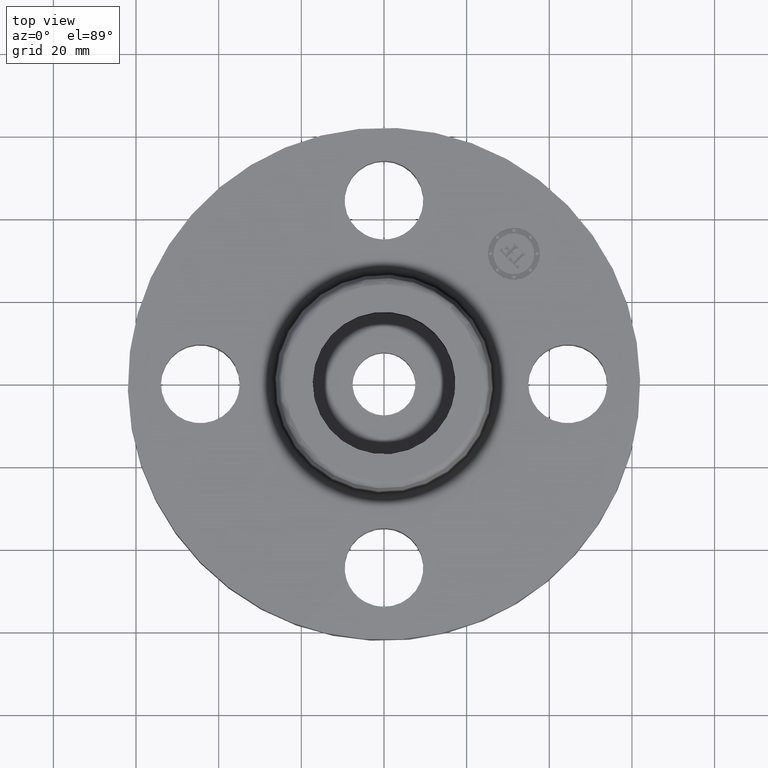
[diagram: clean part render]
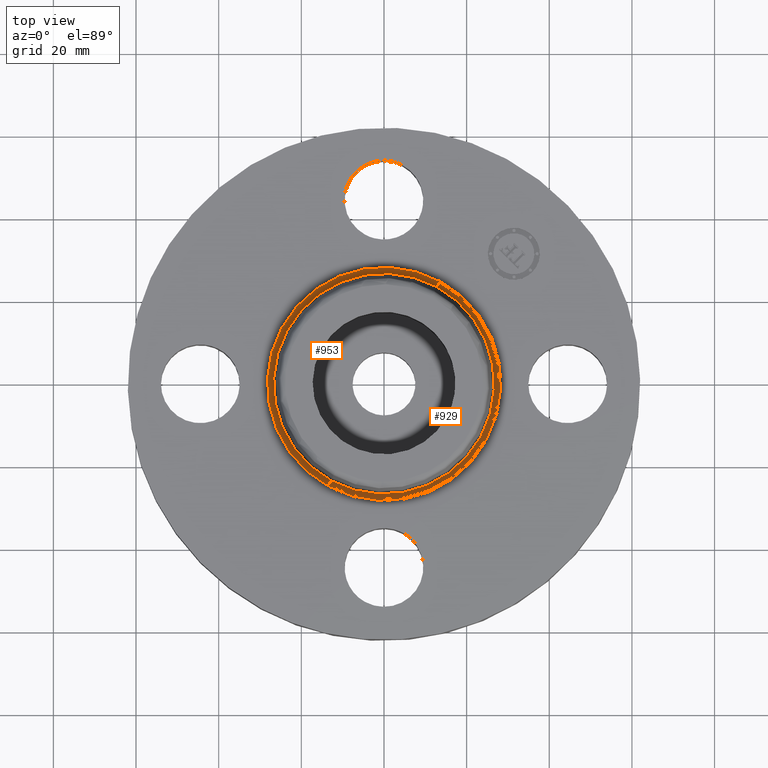
[diagram: same view with one multi-face feature highlighted, each face labeled with its STEP entity id]
A machine part, top view. The highlighted faces form ONE feature: a constant-radius fillet chain: 2 tangent blend faces with common blend radius 1.524 mm. The faces share edges in the B-rep.
Their STEP definitions:
[1] entity #953 (Torus):
#512=AXIS2_PLACEMENT_3D('Circle Axis2P3D',#510,#511,$) ;
#915=AXIS2_PLACEMENT_3D('Circle Axis2P3D',#913,#914,$) ;
#920=AXIS2_PLACEMENT_3D('Circle Axis2P3D',#918,#919,$) ;
#940=AXIS2_PLACEMENT_3D('Torus Axis2P3D',#937,#938,#939) ;
#944=AXIS2_PLACEMENT_3D('Circle Axis2P3D',#942,#943,$) ;
#476=CARTESIAN_POINT('Vertex',(0.503999699238,0.922565261201,0.669581109345)) ;
#478=CARTESIAN_POINT('Vertex',(-0.503999699238,-0.922565261201,0.669581109344)) ;
#510=CARTESIAN_POINT('Axis2P3D Location',(0.,0.,0.669581109343)) ;
#908=CARTESIAN_POINT('Vertex',(0.53232821848,0.974420267848,0.620000000003)) ;
#910=CARTESIAN_POINT('Vertex',(-0.532328218482,-0.974420267852,0.620000000003)) ;
#913=CARTESIAN_POINT('Axis2P3D Location',(0.532328218483,0.974420267852,0.680000000003)) ;
#918=CARTESIAN_POINT('Axis2P3D Location',(-0.532328218483,-0.974420267852,0.680000000003)) ;
#937=CARTESIAN_POINT('Axis2P3D Location',(0.,0.,0.680000000003)) ;
#942=CARTESIAN_POINT('Axis2P3D Location',(0.,0.,0.620000000003)) ;
#511=DIRECTION('Axis2P3D Direction',(-0.,0.,-0.0393700787402)) ;
#914=DIRECTION('Axis2P3D Direction',(-0.0345504945626,0.0188750212049,0.)) ;
#919=DIRECTION('Axis2P3D Direction',(0.0345504945626,-0.0188750212049,0.)) ;
#938=DIRECTION('Axis2P3D Direction',(0.,0.,-0.0393700787402)) ;
#939=DIRECTION('Axis2P3D XDirection',(-0.0188750212049,-0.0345504945626,0.)) ;
#943=DIRECTION('Axis2P3D Direction',(-0.,0.,-0.0393700787402)) ;
#948=ORIENTED_EDGE('',*,*,#946,.F.) ;
#949=ORIENTED_EDGE('',*,*,#922,.T.) ;
#950=ORIENTED_EDGE('',*,*,#514,.T.) ;
#951=ORIENTED_EDGE('',*,*,#917,.F.) ;
#953=ADVANCED_FACE('PartBody',(#952),#941,.F.) ;
#513=CIRCLE('generated circle',#512,1.05125751269) ;
#916=CIRCLE('generated circle',#915,0.0600000000002) ;
#921=CIRCLE('generated circle',#920,0.0600000000002) ;
#945=CIRCLE('generated circle',#944,1.11034597788) ;
#941=TOROIDAL_SURFACE('homeo Torus',#940,1.11034597788,0.0600000000002) ;
#514=EDGE_CURVE('',#479,#477,#513,.T.) ;
#917=EDGE_CURVE('',#909,#477,#916,.T.) ;
#922=EDGE_CURVE('',#911,#479,#921,.T.) ;
#946=EDGE_CURVE('',#911,#909,#945,.T.) ;
#947=EDGE_LOOP('',(#948,#949,#950,#951)) ;
#952=FACE_OUTER_BOUND('',#947,.T.) ;
#477=VERTEX_POINT('',#476) ;
#479=VERTEX_POINT('',#478) ;
#909=VERTEX_POINT('',#908) ;
#911=VERTEX_POINT('',#910) ;
[2] entity #929 (Torus):
#474=AXIS2_PLACEMENT_3D('Circle Axis2P3D',#472,#473,$) ;
#902=AXIS2_PLACEMENT_3D('Torus Axis2P3D',#899,#900,#901) ;
#906=AXIS2_PLACEMENT_3D('Circle Axis2P3D',#904,#905,$) ;
#915=AXIS2_PLACEMENT_3D('Circle Axis2P3D',#913,#914,$) ;
#920=AXIS2_PLACEMENT_3D('Circle Axis2P3D',#918,#919,$) ;
#472=CARTESIAN_POINT('Axis2P3D Location',(0.,0.,0.669581109343)) ;
#476=CARTESIAN_POINT('Vertex',(0.503999699238,0.922565261201,0.669581109345)) ;
#478=CARTESIAN_POINT('Vertex',(-0.503999699238,-0.922565261201,0.669581109344)) ;
#899=CARTESIAN_POINT('Axis2P3D Location',(0.,0.,0.680000000003)) ;
#904=CARTESIAN_POINT('Axis2P3D Location',(0.,0.,0.620000000003)) ;
#908=CARTESIAN_POINT('Vertex',(0.53232821848,0.974420267848,0.620000000003)) ;
#910=CARTESIAN_POINT('Vertex',(-0.532328218482,-0.974420267852,0.620000000003)) ;
#913=CARTESIAN_POINT('Axis2P3D Location',(0.532328218483,0.974420267852,0.680000000003)) ;
#918=CARTESIAN_POINT('Axis2P3D Location',(-0.532328218483,-0.974420267852,0.680000000003)) ;
#473=DIRECTION('Axis2P3D Direction',(-0.,0.,-0.0393700787402)) ;
#900=DIRECTION('Axis2P3D Direction',(0.,0.,-0.0393700787402)) ;
#901=DIRECTION('Axis2P3D XDirection',(0.0188750212049,0.0345504945626,0.)) ;
#905=DIRECTION('Axis2P3D Direction',(-0.,0.,-0.0393700787402)) ;
#914=DIRECTION('Axis2P3D Direction',(-0.0345504945626,0.0188750212049,0.)) ;
#919=DIRECTION('Axis2P3D Direction',(0.0345504945626,-0.0188750212049,0.)) ;
#924=ORIENTED_EDGE('',*,*,#912,.F.) ;
#925=ORIENTED_EDGE('',*,*,#917,.T.) ;
#926=ORIENTED_EDGE('',*,*,#480,.T.) ;
#927=ORIENTED_EDGE('',*,*,#922,.F.) ;
#929=ADVANCED_FACE('PartBody',(#928),#903,.F.) ;
#475=CIRCLE('generated circle',#474,1.05125751269) ;
#907=CIRCLE('generated circle',#906,1.11034597788) ;
#916=CIRCLE('generated circle',#915,0.0600000000002) ;
#921=CIRCLE('generated circle',#920,0.0600000000002) ;
#903=TOROIDAL_SURFACE('homeo Torus',#902,1.11034597788,0.0600000000002) ;
#480=EDGE_CURVE('',#477,#479,#475,.T.) ;
#912=EDGE_CURVE('',#909,#911,#907,.T.) ;
#917=EDGE_CURVE('',#909,#477,#916,.T.) ;
#922=EDGE_CURVE('',#911,#479,#921,.T.) ;
#923=EDGE_LOOP('',(#924,#925,#926,#927)) ;
#928=FACE_OUTER_BOUND('',#923,.T.) ;
#477=VERTEX_POINT('',#476) ;
#479=VERTEX_POINT('',#478) ;
#909=VERTEX_POINT('',#908) ;
#911=VERTEX_POINT('',#910) ;